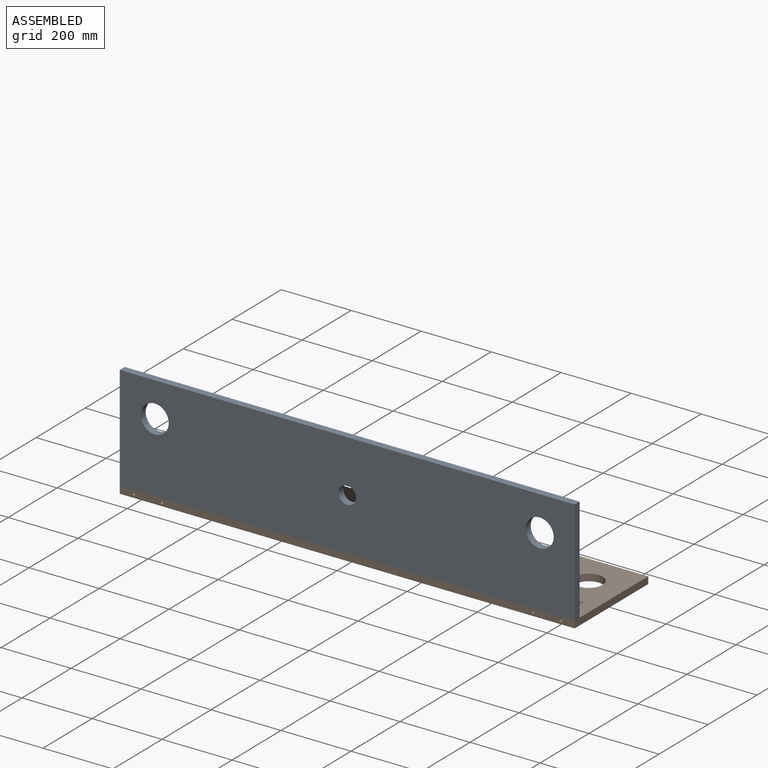
[diagram: assembled view]
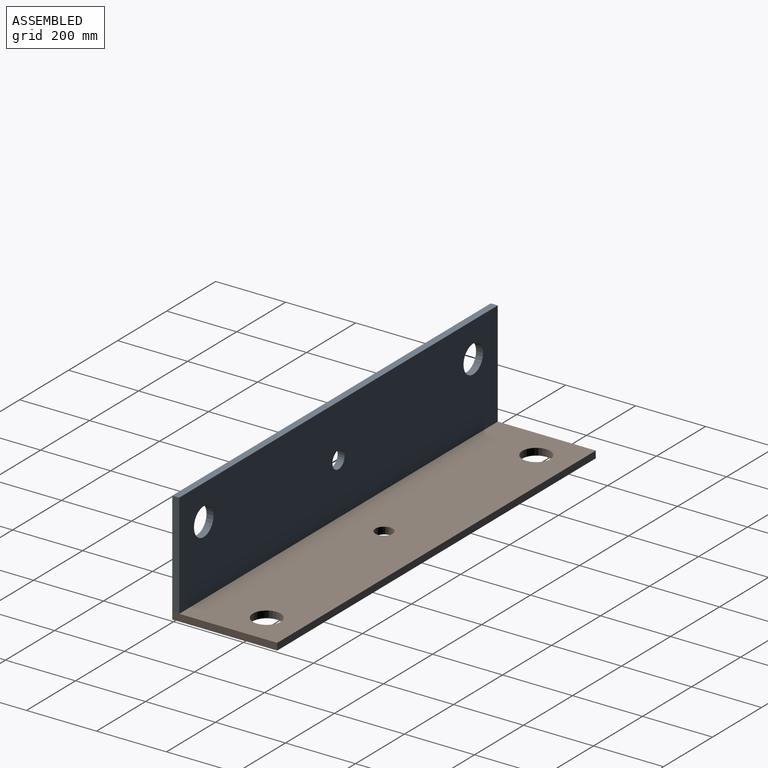
[diagram: assembled view, second angle]
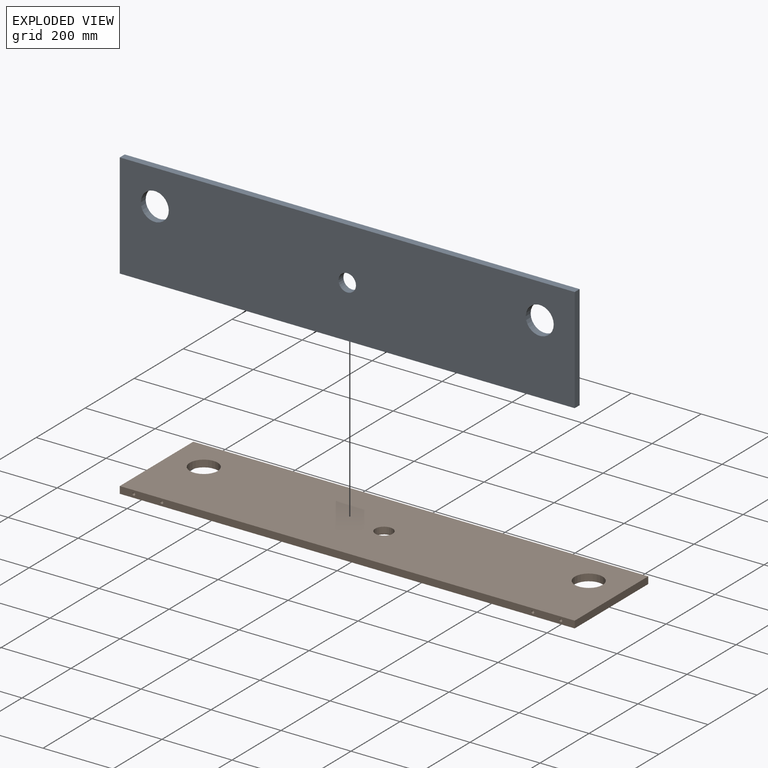
[diagram: exploded view]
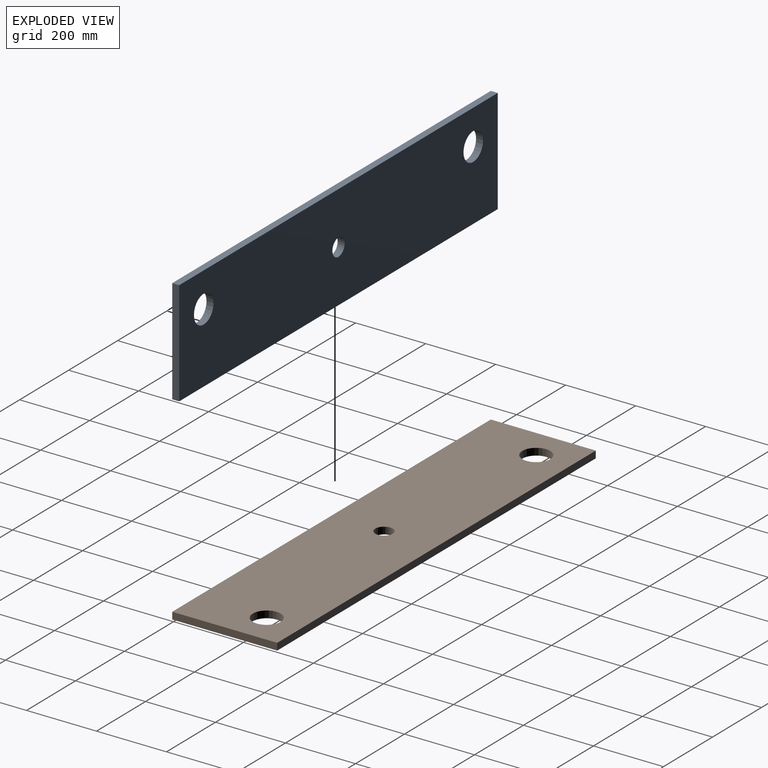
[diagram: exploded view, second angle]
ASSEMBLY  parts=2 mates=3
PART A: 17 faces, bbox 1300x300x20 mm
  f0: plane 1300x20mm, normal (0,-1,0), area 25798.9mm2, adj f2,f6,f7,f8,f9,f11,f13,f15
  f1: plane 1300x20mm, normal (0,1,0), area 26000mm2, adj f2,f6,f7,f8
  f2: plane 300x20mm, normal (-1,0,0), area 6000mm2, adj f0,f1,f7,f8
  f3: cylinder r=25mm len=50mm, axis (0,0,-1), area 3141.6mm2, adj f7,f8
  f4: cylinder r=40mm len=80mm, axis (0,0,-1), area 5026.5mm2, adj f7,f8
  f5: cylinder r=40mm len=80mm, axis (0,0,-1), area 5026.5mm2, adj f7,f8
  f6: plane 300x20mm, normal (1,0,0), area 6000mm2, adj f0,f1,f7,f8
  f7: plane 1300x300mm, normal (0,0,1), area 377983.4mm2, adj f0,f1,f2,f3,f4,f5,f6
  f8: plane 1300x300mm, normal (0,0,-1), area 377983.4mm2, adj f0,f1,f2,f3,f4,f5,f6
  f9: cylinder r=4mm len=40mm, axis (0,-1,0), area 1005.3mm2, adj f0,f10
  f10: plane 8x8mm, normal (0,-1,0), area 50.3mm2, adj f9
  f11: cylinder r=4mm len=40mm, axis (0,-1,0), area 1005.3mm2, adj f0,f12
  f12: plane 8x8mm, normal (0,-1,0), area 50.3mm2, adj f11
  f13: cylinder r=4mm len=40mm, axis (0,-1,0), area 1005.3mm2, adj f0,f14
  f14: plane 8x8mm, normal (0,-1,0), area 50.3mm2, adj f13
  f15: cylinder r=4mm len=40mm, axis (0,-1,0), area 1005.3mm2, adj f0,f16
  f16: plane 8x8mm, normal (0,-1,0), area 50.3mm2, adj f15
PART B: same geometry as A
PLACE A rot(axis=(1,0,0),90deg) t=(-351.23,120.54,127.06)mm
PLACE B t=(-351.23,100.54,107.06)mm fixed
MATE planar B.f7 <-> A.f0  axis (0,0,1) through (298.77,249.21,127.06)mm
MATE planar A.f6 <-> B.f6  axis (1,0,0) through (948.77,120.54,277.06)mm
MATE planar A.f7 <-> B.f0  axis (0,-1,0) through (298.77,100.54,275.73)mm
